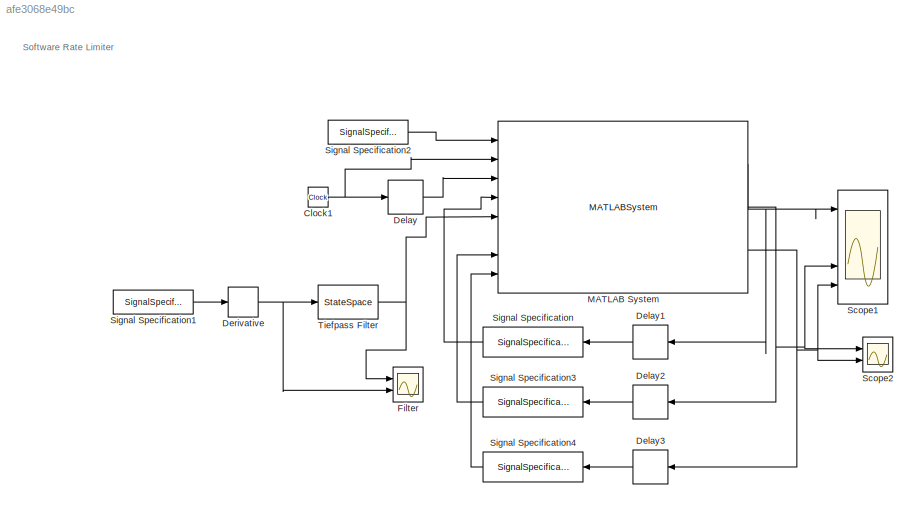
MODEL slx_afe3068e49bc
KIND model
CONFIG AbsTol = auto
CONFIG EnableMultiTasking = off
CONFIG FixedStep = auto
CONFIG MaxStep = auto
CONFIG MinStep = auto
CONFIG RelTol = 1e-3
CONFIG SampleTimeConstraint = Unconstrained
CONFIG Solver = VariableStepAuto
CONFIG SolverName = VariableStepAuto
CONFIG StartTime = 0.0
CONFIG StopTime = 10.0
BLOCK [Clock] Clock1
BLOCK [Delay] Delay
  DelayLength = 1
  InputPortMap = u0
  Ports = [1, 1]
BLOCK [Delay] Delay1
  DelayLength = 1
  InputPortMap = u0
  Ports = [1, 1]
BLOCK [Delay] Delay2
  DelayLength = 1
  InputPortMap = u0
  Ports = [1, 1]
BLOCK [Delay] Delay3
  DelayLength = 1
  InputPortMap = u0
  Ports = [1, 1]
BLOCK [Derivative] Derivative
BLOCK [Scope] Filter
  NumInputPorts = 2
  Ports = [2]
  ScopeSpecificationString = C++SS(StrPVP('SaveName','ScopeData1'),StrPVP('LimitDataPoints','on'),StrPVP('DataFormat','Array'),StrPVP('Decimation','1'),StrPVP('BlockParamSampleInput','off'),StrPVP('SaveName','ScopeData1'))
BLOCK [MATLABSystem] MATLAB System
  MaskDisplay = disp('rate_limiter_classdef');\nport_label('input',1,'input');\nport_label('input',2,'clock');\nport_label('input',3,'clock_delayed');\nport_label('input',4,'last_value');\nport_label('input',5,'deriv');\nport_label('input',6,'rate_limiter');\nport_label('input',7,'rl_integral_in');\nport_label('input',8,'rl_groesser_y_in');\nport_label('output',1,'y');\nport_label('output',2,'rl_integral_out');\nport_label(...<+32ch>
  MaskType = rate_limiter_classdef
  Ports = [8, 3]
  SimulateUsing = Code generation
  System = rate_limiter_classdef
BLOCK [Scope] Scope1
  NumInputPorts = 5
  Ports = [5]
  ScopeSpecificationString = C++SS(StrPVP('SaveName','ScopeData2'))
BLOCK [Scope] Scope2
  NumInputPorts = 2
  Ports = [2]
  ScopeSpecificationString = C++SS(StrPVP('SaveName','ScopeData'))
BLOCK [SignalSpecification] Signal Specification
  Dimensions = 1
  OutDataTypeStr = double
  SignalType = real
BLOCK [SignalSpecification] Signal Specification1
  Dimensions = 1
BLOCK [SignalSpecification] Signal Specification2
  Dimensions = 1
BLOCK [SignalSpecification] Signal Specification3
  Dimensions = 1
  OutDataTypeStr = double
  SignalType = real
BLOCK [SignalSpecification] Signal Specification4
  Dimensions = 1
  OutDataTypeStr = double
  SignalType = real
BLOCK [StateSpace] Tiefpass Filter
  A = A_butter
  B = B_butter
  C = C_butter
  D = D_butter
  Ports = [1, 1]
  X0 = 0
ANNOTATION (root): Software Rate Limiter
NET Clock1:1 -> Delay:1, MATLAB System:2
LINE Delay1:1 -> Signal Specification:1
LINE Delay2:1 -> Signal Specification3:1
LINE Delay3:1 -> Signal Specification4:1
LINE Delay:1 -> MATLAB System:3
NET Derivative:1 -> Filter:2, Tiefpass Filter:1
NET MATLAB System:1 -> Delay1:1, Scope1:1
NET MATLAB System:2 -> Delay2:1, Scope1:4, Scope2:1
NET MATLAB System:3 -> Delay3:1, Scope1:5, Scope2:2
LINE Signal Specification1:1 -> Derivative:1
LINE Signal Specification2:1 -> MATLAB System:1
LINE Signal Specification3:1 -> MATLAB System:7
LINE Signal Specification4:1 -> MATLAB System:8
LINE Signal Specification:1 -> MATLAB System:4
NET Tiefpass Filter:1 -> Filter:1, MATLAB System:5
note: NET lines group one-source signal fan-out (src -> all destinations, sorted); 1:1 wires keep LINE
